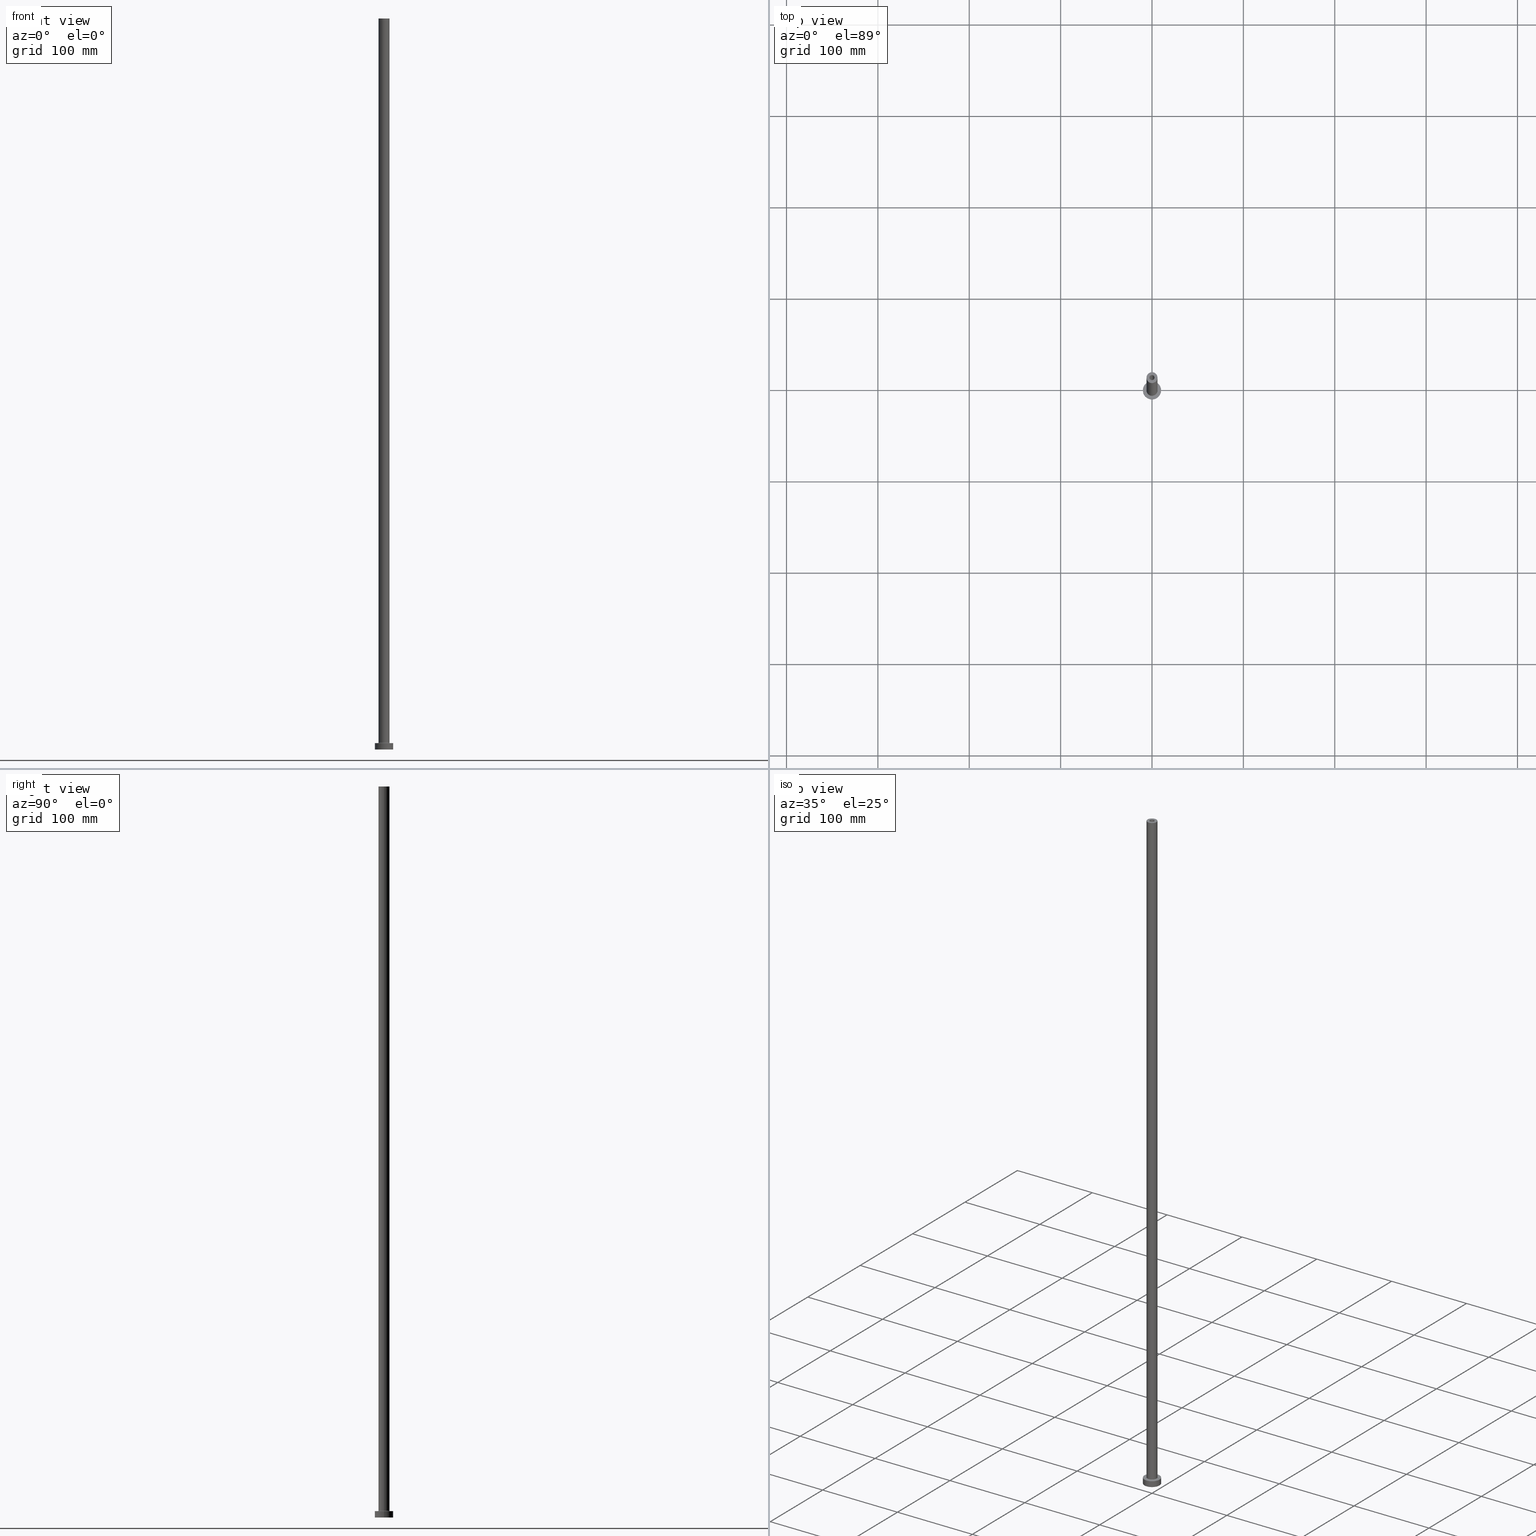
[diagram: canonical four-view strip — front | top / right | iso, engineering-drawing reading convention]
A machine part, canonical four-view strip (front | top / right | iso — engineering-drawing reading convention). The complete STEP part file that produces these views, byte-faithful:
ISO-10303-21;
HEADER;
FILE_DESCRIPTION (( 'STEP AP203' ),
    '1' );
FILE_NAME ('8cc1.STEP',
    '2023-02-13T15:52:03',
    ( '' ),
    ( '' ),
    'SwSTEP 2.0',
    'SolidWorks 2019',
    '' );
FILE_SCHEMA (( 'CONFIG_CONTROL_DESIGN' ));
ENDSEC;

DATA;
#1 = ORIENTED_EDGE ( 'NONE', *, *, #50, .T. ) ;
#2 = CYLINDRICAL_SURFACE ( 'NONE', #186, 6.000000000000000888 ) ;
#3 = FACE_BOUND ( 'NONE', #264, .T. ) ;
#4 = ORIENTED_EDGE ( 'NONE', *, *, #305, .T. ) ;
#5 = DIRECTION ( 'NONE',  ( 1.000000000000000000, 0.000000000000000000, 0.000000000000000000 ) ) ;
#6 = DIRECTION ( 'NONE',  ( -0.000000000000000000, -0.000000000000000000, -1.000000000000000000 ) ) ;
#7 = CIRCLE ( 'NONE', #147, 10.00000000000000000 ) ;
#8 = FACE_OUTER_BOUND ( 'NONE', #241, .T. ) ;
#9 = EDGE_CURVE ( 'NONE', #111, #339, #56, .T. ) ;
#10 = TOROIDAL_SURFACE ( 'NONE', #285, 6.500000000000000888, 0.5000000000000000000 ) ;
#11 = CC_DESIGN_DATE_AND_TIME_ASSIGNMENT ( #80, #85, ( #369 ) ) ;
#12 = LINE ( 'NONE', #258, #292 ) ;
#13 = DIRECTION ( 'NONE',  ( 0.000000000000000000, 0.000000000000000000, 1.000000000000000000 ) ) ;
#14 = FACE_OUTER_BOUND ( 'NONE', #208, .T. ) ;
#15 = FACE_OUTER_BOUND ( 'NONE', #273, .T. ) ;
#16 = CYLINDRICAL_SURFACE ( 'NONE', #65, 10.00000000000000000 ) ;
#17 = CC_DESIGN_PERSON_AND_ORGANIZATION_ASSIGNMENT ( #232, #438, ( #369 ) ) ;
#18 = DIRECTION ( 'NONE',  ( 1.000000000000000000, 0.000000000000000000, -0.000000000000000000 ) ) ;
#19 = ORGANIZATION ( 'NEUR�EN�', 'NEUR�EN�', '' ) ;
#20 = CARTESIAN_POINT ( 'NONE',  ( 0.000000000000000000, 0.000000000000000000, 7.000000000000000000 ) ) ;
#21 = AXIS2_PLACEMENT_3D ( 'NONE', #415, #101, #358 ) ;
#22 = EDGE_LOOP ( 'NONE', ( #414, #383, #408, #239 ) ) ;
#23 =( NAMED_UNIT ( * ) SI_UNIT ( $, .STERADIAN. ) SOLID_ANGLE_UNIT ( ) );
#24 = DIRECTION ( 'NONE',  ( -1.000000000000000000, 0.000000000000000000, 0.000000000000000000 ) ) ;
#25 = CARTESIAN_POINT ( 'NONE',  ( 0.000000000000000000, 0.000000000000000000, 7.000000000000000000 ) ) ;
#26 = ORIENTED_EDGE ( 'NONE', *, *, #215, .F. ) ;
#27 = DIRECTION ( 'NONE',  ( -0.000000000000000000, -0.000000000000000000, -1.000000000000000000 ) ) ;
#28 = AXIS2_PLACEMENT_3D ( 'NONE', #435, #145, #18 ) ;
#29 = CARTESIAN_POINT ( 'NONE',  ( 2.899999999999999911, 3.551475717527323832E-16, 0.000000000000000000 ) ) ;
#30 = CARTESIAN_POINT ( 'NONE',  ( 0.000000000000000000, 0.000000000000000000, 800.0000000000000000 ) ) ;
#31 = AXIS2_PLACEMENT_3D ( 'NONE', #79, #302, #230 ) ;
#32 = DIRECTION ( 'NONE',  ( -0.000000000000000000, -0.000000000000000000, -1.000000000000000000 ) ) ;
#33 = PRODUCT_DEFINITION ( 'NEZN�M�', '', #202, #412 ) ;
#34 = LOCAL_TIME ( 16, 52, 3.000000000000000000, #125 ) ;
#35 = ORIENTED_EDGE ( 'NONE', *, *, #278, .T. ) ;
#36 = ORIENTED_EDGE ( 'NONE', *, *, #437, .T. ) ;
#37 = LINE ( 'NONE', #180, #325 ) ;
#38 = COORDINATED_UNIVERSAL_TIME_OFFSET ( 1, 0, .AHEAD. ) ;
#39 = ORIENTED_EDGE ( 'NONE', *, *, #9, .T. ) ;
#40 = CARTESIAN_POINT ( 'NONE',  ( 0.000000000000000000, 0.000000000000000000, 800.0000000000000000 ) ) ;
#41 = DIRECTION ( 'NONE',  ( 1.000000000000000000, 0.000000000000000000, 0.000000000000000000 ) ) ;
#42 = VERTEX_POINT ( 'NONE', #411 ) ;
#43 = AXIS2_PLACEMENT_3D ( 'NONE', #250, #218, #41 ) ;
#44 = CC_DESIGN_APPROVAL ( #386, ( #369 ) ) ;
#45 = VERTEX_POINT ( 'NONE', #144 ) ;
#46 = CARTESIAN_POINT ( 'NONE',  ( 0.000000000000000000, 0.000000000000000000, 0.000000000000000000 ) ) ;
#47 = CARTESIAN_POINT ( 'NONE',  ( 0.000000000000000000, 0.000000000000000000, 755.0000000000000000 ) ) ;
#48 = CARTESIAN_POINT ( 'NONE',  ( -2.750000000000000000, 0.000000000000000000, 800.0000000000000000 ) ) ;
#49 = EDGE_CURVE ( 'NONE', #360, #118, #289, .T. ) ;
#50 = EDGE_CURVE ( 'NONE', #118, #294, #94, .T. ) ;
#51 = DIRECTION ( 'NONE',  ( 0.000000000000000000, 0.000000000000000000, -1.000000000000000000 ) ) ;
#52 = AXIS2_PLACEMENT_3D ( 'NONE', #308, #58, #83 ) ;
#53 = DIRECTION ( 'NONE',  ( 0.000000000000000000, 0.000000000000000000, 1.000000000000000000 ) ) ;
#54 = DIRECTION ( 'NONE',  ( 1.000000000000000000, 0.000000000000000000, 0.000000000000000000 ) ) ;
#55 = CIRCLE ( 'NONE', #392, 6.000000000000000888 ) ;
#56 = LINE ( 'NONE', #188, #436 ) ;
#57 = VERTEX_POINT ( 'NONE', #48 ) ;
#58 = DIRECTION ( 'NONE',  ( 0.000000000000000000, -1.000000000000000000, 0.000000000000000000 ) ) ;
#59 = ADVANCED_FACE ( 'NONE', ( #146 ), #434, .F. ) ;
#60 = DIRECTION ( 'NONE',  ( 0.000000000000000000, 0.000000000000000000, 1.000000000000000000 ) ) ;
#61 = CIRCLE ( 'NONE', #88, 0.5000000000000004441 ) ;
#62 = CARTESIAN_POINT ( 'NONE',  ( -2.899999999999999911, 0.000000000000000000, 0.000000000000000000 ) ) ;
#63 = FACE_OUTER_BOUND ( 'NONE', #419, .T. ) ;
#64 = AXIS2_PLACEMENT_3D ( 'NONE', #348, #60, #159 ) ;
#65 = AXIS2_PLACEMENT_3D ( 'NONE', #298, #115, #204 ) ;
#66 = EDGE_LOOP ( 'NONE', ( #36, #39, #185, #388 ) ) ;
#67 = CARTESIAN_POINT ( 'NONE',  ( -2.750000000000000000, 0.000000000000000000, 755.0000000000000000 ) ) ;
#68 = CIRCLE ( 'NONE', #353, 6.500000000000000888 ) ;
#69 = PLANE ( 'NONE',  #409 ) ;
#70 = ORIENTED_EDGE ( 'NONE', *, *, #142, .F. ) ;
#71 = ORIENTED_EDGE ( 'NONE', *, *, #142, .T. ) ;
#72 = APPROVAL_PERSON_ORGANIZATION ( #420, #249, #315 ) ;
#73 = DIRECTION ( 'NONE',  ( 0.000000000000000000, 0.000000000000000000, 1.000000000000000000 ) ) ;
#74 = APPROVAL_ROLE ( '' ) ;
#75 = EDGE_CURVE ( 'NONE', #431, #446, #68, .T. ) ;
#76 = EDGE_LOOP ( 'NONE', ( #123, #71, #131, #156 ) ) ;
#77 = EDGE_CURVE ( 'NONE', #45, #458, #450, .T. ) ;
#78 = DIRECTION ( 'NONE',  ( 0.000000000000000000, 0.000000000000000000, -1.000000000000000000 ) ) ;
#79 = CARTESIAN_POINT ( 'NONE',  ( 0.000000000000000000, 0.000000000000000000, 800.0000000000000000 ) ) ;
#80 = DATE_AND_TIME ( #401, #319 ) ;
#81 =( LENGTH_UNIT ( ) NAMED_UNIT ( * ) SI_UNIT ( .MILLI., .METRE. ) );
#82 = APPLICATION_CONTEXT ( 'configuration controlled 3d designs of mechanical parts and assemblies' ) ;
#83 = DIRECTION ( 'NONE',  ( 0.000000000000000000, 0.000000000000000000, -1.000000000000000000 ) ) ;
#84 = DATE_AND_TIME ( #443, #34 ) ;
#85 = DATE_TIME_ROLE ( 'classification_date' ) ;
#86 = DIRECTION ( 'NONE',  ( -1.000000000000000000, 0.000000000000000000, 0.000000000000000000 ) ) ;
#87 = ORIENTED_EDGE ( 'NONE', *, *, #215, .T. ) ;
#88 = AXIS2_PLACEMENT_3D ( 'NONE', #299, #445, #380 ) ;
#89 = DIRECTION ( 'NONE',  ( 1.000000000000000000, 0.000000000000000000, 0.000000000000000000 ) ) ;
#90 = ORIENTED_EDGE ( 'NONE', *, *, #261, .F. ) ;
#91 = EDGE_CURVE ( 'NONE', #111, #57, #133, .T. ) ;
#92 = CC_DESIGN_PERSON_AND_ORGANIZATION_ASSIGNMENT ( #109, #248, ( #202 ) ) ;
#93 = ORIENTED_EDGE ( 'NONE', *, *, #91, .F. ) ;
#94 = CIRCLE ( 'NONE', #151, 2.899999999999999911 ) ;
#95 = PRODUCT_DEFINITION_SHAPE ( 'NONE', 'NONE',  #33 ) ;
#96 = UNCERTAINTY_MEASURE_WITH_UNIT (LENGTH_MEASURE( 1.000000000000000082E-05 ), #81, 'distance_accuracy_value', 'NONE');
#97 = CARTESIAN_POINT ( 'NONE',  ( 2.750000000000000000, 3.367778697655221012E-16, 800.0000000000000000 ) ) ;
#98 = EDGE_CURVE ( 'NONE', #446, #431, #314, .T. ) ;
#99 = CIRCLE ( 'NONE', #211, 6.000000000000000888 ) ;
#100 = VECTOR ( 'NONE', #323, 1000.000000000000000 ) ;
#101 = DIRECTION ( 'NONE',  ( 0.000000000000000000, 0.000000000000000000, -1.000000000000000000 ) ) ;
#102 = EDGE_LOOP ( 'NONE', ( #322, #425, #457, #1 ) ) ;
#103 = TOROIDAL_SURFACE ( 'NONE', #237, 6.500000000000000888, 0.5000000000000000000 ) ;
#104 = ORIENTED_EDGE ( 'NONE', *, *, #9, .F. ) ;
#105 = DATE_AND_TIME ( #391, #423 ) ;
#106 = AXIS2_PLACEMENT_3D ( 'NONE', #336, #266, #54 ) ;
#107 = EDGE_LOOP ( 'NONE', ( #224, #136, #139, #301 ) ) ;
#108 = EDGE_CURVE ( 'NONE', #339, #377, #328, .T. ) ;
#109 = PERSON_AND_ORGANIZATION ( #222, #19 ) ;
#110 = ADVANCED_FACE ( 'NONE', ( #413 ), #350, .T. ) ;
#111 = VERTEX_POINT ( 'NONE', #97 ) ;
#112 = CIRCLE ( 'NONE', #195, 2.899999999999999911 ) ;
#113 = ORIENTED_EDGE ( 'NONE', *, *, #305, .F. ) ;
#114 = COORDINATED_UNIVERSAL_TIME_OFFSET ( 1, 0, .AHEAD. ) ;
#115 = DIRECTION ( 'NONE',  ( -0.000000000000000000, -0.000000000000000000, -1.000000000000000000 ) ) ;
#116 = DIRECTION ( 'NONE',  ( 0.000000000000000000, 0.000000000000000000, 1.000000000000000000 ) ) ;
#117 = CARTESIAN_POINT ( 'NONE',  ( 0.000000000000000000, 0.000000000000000000, 800.0000000000000000 ) ) ;
#118 = VERTEX_POINT ( 'NONE', #62 ) ;
#119 = CARTESIAN_POINT ( 'NONE',  ( 0.000000000000000000, 0.000000000000000000, 7.499999999999951150 ) ) ;
#120 = ADVANCED_FACE ( 'NONE', ( #453 ), #2, .T. ) ;
#121 = FACE_OUTER_BOUND ( 'NONE', #102, .T. ) ;
#122 =( GEOMETRIC_REPRESENTATION_CONTEXT ( 3 ) GLOBAL_UNCERTAINTY_ASSIGNED_CONTEXT ( ( #96 ) ) GLOBAL_UNIT_ASSIGNED_CONTEXT ( ( #81, #240, #23 ) ) REPRESENTATION_CONTEXT ( 'NONE', 'WORKASPACE' ) );
#123 = ORIENTED_EDGE ( 'NONE', *, *, #228, .F. ) ;
#124 = DIRECTION ( 'NONE',  ( 0.000000000000000000, 0.000000000000000000, 1.000000000000000000 ) ) ;
#125 = COORDINATED_UNIVERSAL_TIME_OFFSET ( 1, 0, .AHEAD. ) ;
#126 = FACE_BOUND ( 'NONE', #320, .T. ) ;
#127 = LOCAL_TIME ( 16, 52, 3.000000000000000000, #38 ) ;
#128 = AXIS2_PLACEMENT_3D ( 'NONE', #332, #295, #296 ) ;
#129 = ORIENTED_EDGE ( 'NONE', *, *, #261, .T. ) ;
#130 = DATE_AND_TIME ( #355, #127 ) ;
#131 = ORIENTED_EDGE ( 'NONE', *, *, #246, .T. ) ;
#132 = APPROVAL_DATE_TIME ( #105, #386 ) ;
#133 = CIRCLE ( 'NONE', #31, 2.750000000000000000 ) ;
#134 = CARTESIAN_POINT ( 'NONE',  ( -10.00000000000000000, 0.000000000000000000, 7.000000000000000000 ) ) ;
#135 = EDGE_CURVE ( 'NONE', #57, #377, #37, .T. ) ;
#136 = ORIENTED_EDGE ( 'NONE', *, *, #291, .T. ) ;
#137 = DIRECTION ( 'NONE',  ( 0.000000000000000000, 0.000000000000000000, 1.000000000000000000 ) ) ;
#138 = CIRCLE ( 'NONE', #166, 2.899999999999999911 ) ;
#139 = ORIENTED_EDGE ( 'NONE', *, *, #329, .T. ) ;
#140 = CARTESIAN_POINT ( 'NONE',  ( 0.000000000000000000, 0.000000000000000000, 0.000000000000000000 ) ) ;
#141 = EDGE_LOOP ( 'NONE', ( #162, #93 ) ) ;
#142 = EDGE_CURVE ( 'NONE', #395, #390, #176, .T. ) ;
#143 = CARTESIAN_POINT ( 'NONE',  ( 0.000000000000000000, 0.000000000000000000, 7.499999999999951150 ) ) ;
#144 = CARTESIAN_POINT ( 'NONE',  ( 10.00000000000000000, 1.224646799147353256E-15, 7.000000000000000000 ) ) ;
#145 = DIRECTION ( 'NONE',  ( 0.000000000000000000, 0.000000000000000000, 1.000000000000000000 ) ) ;
#146 = FACE_OUTER_BOUND ( 'NONE', #22, .T. ) ;
#147 = AXIS2_PLACEMENT_3D ( 'NONE', #247, #137, #456 ) ;
#148 = CARTESIAN_POINT ( 'NONE',  ( -2.899999999999999911, 0.000000000000000000, 755.0000000000000000 ) ) ;
#149 = DIRECTION ( 'NONE',  ( -0.000000000000000000, -0.000000000000000000, -1.000000000000000000 ) ) ;
#150 = FACE_BOUND ( 'NONE', #141, .T. ) ;
#151 = AXIS2_PLACEMENT_3D ( 'NONE', #226, #367, #5 ) ;
#152 = DIRECTION ( 'NONE',  ( 1.000000000000000000, 0.000000000000000000, 0.000000000000000000 ) ) ;
#153 = DIRECTION ( 'NONE',  ( -0.000000000000000000, -0.000000000000000000, -1.000000000000000000 ) ) ;
#154 = CARTESIAN_POINT ( 'NONE',  ( -6.500000000000000888, 7.960204194457796463E-16, 6.999999999999975131 ) ) ;
#155 = VECTOR ( 'NONE', #149, 1000.000000000000000 ) ;
#156 = ORIENTED_EDGE ( 'NONE', *, *, #203, .F. ) ;
#157 = CYLINDRICAL_SURFACE ( 'NONE', #216, 10.00000000000000000 ) ;
#158 = ADVANCED_FACE ( 'NONE', ( #459 ), #280, .F. ) ;
#159 = DIRECTION ( 'NONE',  ( 1.000000000000000000, 0.000000000000000000, 0.000000000000000000 ) ) ;
#160 = LINE ( 'NONE', #238, #439 ) ;
#161 = CC_DESIGN_PERSON_AND_ORGANIZATION_ASSIGNMENT ( #372, #375, ( #33 ) ) ;
#162 = ORIENTED_EDGE ( 'NONE', *, *, #437, .F. ) ;
#163 = DIRECTION ( 'NONE',  ( 0.000000000000000000, 0.000000000000000000, -1.000000000000000000 ) ) ;
#164 = PERSON_AND_ORGANIZATION ( #222, #19 ) ;
#165 = FACE_OUTER_BOUND ( 'NONE', #253, .T. ) ;
#166 = AXIS2_PLACEMENT_3D ( 'NONE', #46, #6, #189 ) ;
#167 = PRODUCT ( '8cc1', '8cc1', '', ( #234 ) ) ;
#168 = CARTESIAN_POINT ( 'NONE',  ( 0.000000000000000000, 0.000000000000000000, 7.499999999999951150 ) ) ;
#169 = DIRECTION ( 'NONE',  ( -0.000000000000000000, -0.000000000000000000, -1.000000000000000000 ) ) ;
#170 = PERSON_AND_ORGANIZATION ( #222, #19 ) ;
#171 = APPROVAL_STATUS ( 'not_yet_approved' ) ;
#172 = CALENDAR_DATE ( 2023, 13, 2 ) ;
#173 = CARTESIAN_POINT ( 'NONE',  ( 6.000000000000000888, 7.347880794884120722E-16, 800.0000000000000000 ) ) ;
#174 = AXIS2_PLACEMENT_3D ( 'NONE', #382, #13, #335 ) ;
#175 = ORIENTED_EDGE ( 'NONE', *, *, #98, .T. ) ;
#176 = LINE ( 'NONE', #173, #100 ) ;
#177 = CC_DESIGN_DATE_AND_TIME_ASSIGNMENT ( #130, #281, ( #33 ) ) ;
#178 = DIRECTION ( 'NONE',  ( 0.000000000000000000, 0.000000000000000000, 1.000000000000000000 ) ) ;
#179 = EDGE_CURVE ( 'NONE', #458, #331, #422, .T. ) ;
#180 = CARTESIAN_POINT ( 'NONE',  ( -2.750000000000000000, 0.000000000000000000, 800.0000000000000000 ) ) ;
#181 = ORIENTED_EDGE ( 'NONE', *, *, #50, .F. ) ;
#182 = DIRECTION ( 'NONE',  ( 0.000000000000000000, 0.000000000000000000, -1.000000000000000000 ) ) ;
#183 = AXIS2_PLACEMENT_3D ( 'NONE', #259, #263, #86 ) ;
#184 = CC_DESIGN_PERSON_AND_ORGANIZATION_ASSIGNMENT ( #394, #225, ( #202 ) ) ;
#185 = ORIENTED_EDGE ( 'NONE', *, *, #361, .F. ) ;
#186 = AXIS2_PLACEMENT_3D ( 'NONE', #40, #32, #277 ) ;
#187 = DIRECTION ( 'NONE',  ( 0.000000000000000000, 0.000000000000000000, 1.000000000000000000 ) ) ;
#188 = CARTESIAN_POINT ( 'NONE',  ( 2.750000000000000000, 3.367778697655221012E-16, 800.0000000000000000 ) ) ;
#189 = DIRECTION ( 'NONE',  ( 1.000000000000000000, 0.000000000000000000, 0.000000000000000000 ) ) ;
#190 = ORIENTED_EDGE ( 'NONE', *, *, #351, .F. ) ;
#191 = CARTESIAN_POINT ( 'NONE',  ( -10.00000000000000000, 0.000000000000000000, 7.000000000000000000 ) ) ;
#192 = CARTESIAN_POINT ( 'NONE',  ( 0.000000000000000000, 0.000000000000000000, 755.0000000000000000 ) ) ;
#193 = CARTESIAN_POINT ( 'NONE',  ( 0.000000000000000000, 0.000000000000000000, 755.0000000000000000 ) ) ;
#194 = EDGE_LOOP ( 'NONE', ( #268, #421 ) ) ;
#195 = AXIS2_PLACEMENT_3D ( 'NONE', #47, #430, #220 ) ;
#196 = FACE_OUTER_BOUND ( 'NONE', #318, .T. ) ;
#197 = DIRECTION ( 'NONE',  ( -0.000000000000000000, -0.000000000000000000, -1.000000000000000000 ) ) ;
#198 = VECTOR ( 'NONE', #51, 1000.000000000000000 ) ;
#199 = APPLICATION_PROTOCOL_DEFINITION ( 'international standard', 'config_control_design', 1994, #269 ) ;
#200 = CARTESIAN_POINT ( 'NONE',  ( 0.000000000000000000, 0.000000000000000000, 7.000000000000000000 ) ) ;
#201 = EDGE_CURVE ( 'NONE', #360, #342, #341, .T. ) ;
#202 = PRODUCT_DEFINITION_FORMATION_WITH_SPECIFIED_SOURCE ( 'LIBOVOLN�', '', #167, .NOT_KNOWN. ) ;
#203 = EDGE_CURVE ( 'NONE', #402, #213, #12, .T. ) ;
#204 = DIRECTION ( 'NONE',  ( -1.000000000000000000, 0.000000000000000000, 0.000000000000000000 ) ) ;
#205 = ORIENTED_EDGE ( 'NONE', *, *, #98, .F. ) ;
#206 = CARTESIAN_POINT ( 'NONE',  ( 0.000000000000000000, 0.000000000000000000, 800.0000000000000000 ) ) ;
#207 = DIRECTION ( 'NONE',  ( 0.000000000000000000, 0.000000000000000000, -1.000000000000000000 ) ) ;
#208 = EDGE_LOOP ( 'NONE', ( #444, #357 ) ) ;
#209 = LINE ( 'NONE', #347, #324 ) ;
#210 = DIRECTION ( 'NONE',  ( 1.000000000000000000, 0.000000000000000000, 0.000000000000000000 ) ) ;
#211 = AXIS2_PLACEMENT_3D ( 'NONE', #119, #124, #265 ) ;
#212 = PLANE ( 'NONE',  #223 ) ;
#213 = VERTEX_POINT ( 'NONE', #398 ) ;
#214 = ADVANCED_FACE ( 'NONE', ( #15 ), #157, .T. ) ;
#215 = EDGE_CURVE ( 'NONE', #213, #431, #61, .T. ) ;
#216 = AXIS2_PLACEMENT_3D ( 'NONE', #343, #153, #24 ) ;
#217 = CIRCLE ( 'NONE', #43, 6.000000000000000888 ) ;
#218 = DIRECTION ( 'NONE',  ( 0.000000000000000000, 0.000000000000000000, 1.000000000000000000 ) ) ;
#219 = ORIENTED_EDGE ( 'NONE', *, *, #91, .T. ) ;
#220 = DIRECTION ( 'NONE',  ( 1.000000000000000000, 0.000000000000000000, 0.000000000000000000 ) ) ;
#221 = ORIENTED_EDGE ( 'NONE', *, *, #179, .T. ) ;
#222 = PERSON ( 'NEUR�EN�', 'NEUR�EN�', 'NEUR�EN�', ('NEUR�EN�'), ('NEUR�EN�'), ('NEUR�EN�') ) ;
#223 = AXIS2_PLACEMENT_3D ( 'NONE', #354, #417, #317 ) ;
#224 = ORIENTED_EDGE ( 'NONE', *, *, #77, .F. ) ;
#225 = PERSON_AND_ORGANIZATION_ROLE ( 'design_supplier' ) ;
#226 = CARTESIAN_POINT ( 'NONE',  ( 0.000000000000000000, 0.000000000000000000, 0.000000000000000000 ) ) ;
#227 = ORIENTED_EDGE ( 'NONE', *, *, #135, .T. ) ;
#228 = EDGE_CURVE ( 'NONE', #395, #402, #55, .T. ) ;
#229 = CIRCLE ( 'NONE', #52, 0.5000000000000004441 ) ;
#230 = DIRECTION ( 'NONE',  ( 1.000000000000000000, 0.000000000000000000, 0.000000000000000000 ) ) ;
#231 = PLANE ( 'NONE',  #271 ) ;
#232 = PERSON_AND_ORGANIZATION ( #222, #19 ) ;
#233 = ADVANCED_FACE ( 'NONE', ( #121 ), #262, .F. ) ;
#234 = MECHANICAL_CONTEXT ( 'NONE', #269, 'mechanical' ) ;
#235 = DIRECTION ( 'NONE',  ( -1.000000000000000000, 0.000000000000000000, 0.000000000000000000 ) ) ;
#236 = ORIENTED_EDGE ( 'NONE', *, *, #361, .T. ) ;
#237 = AXIS2_PLACEMENT_3D ( 'NONE', #168, #460, #352 ) ;
#238 = CARTESIAN_POINT ( 'NONE',  ( 2.899999999999999911, 3.551475717527323832E-16, 763.2024386617638356 ) ) ;
#239 = ORIENTED_EDGE ( 'NONE', *, *, #49, .F. ) ;
#240 =( NAMED_UNIT ( * ) PLANE_ANGLE_UNIT ( ) SI_UNIT ( $, .RADIAN. ) );
#241 = EDGE_LOOP ( 'NONE', ( #113, #327 ) ) ;
#242 = APPROVAL_STATUS ( 'not_yet_approved' ) ;
#243 = DIRECTION ( 'NONE',  ( 0.000000000000000000, 0.000000000000000000, -1.000000000000000000 ) ) ;
#244 = MANIFOLD_SOLID_BREP ( 'Odebrat vysunut�m4', #396 ) ;
#245 = CIRCLE ( 'NONE', #447, 10.00000000000000000 ) ;
#246 = EDGE_CURVE ( 'NONE', #390, #213, #399, .T. ) ;
#247 = CARTESIAN_POINT ( 'NONE',  ( 0.000000000000000000, 0.000000000000000000, 0.000000000000000000 ) ) ;
#248 = PERSON_AND_ORGANIZATION_ROLE ( 'creator' ) ;
#249 = APPROVAL ( #242, 'NEUR�EN�' ) ;
#250 = CARTESIAN_POINT ( 'NONE',  ( 0.000000000000000000, 0.000000000000000000, 800.0000000000000000 ) ) ;
#251 = EDGE_LOOP ( 'NONE', ( #181, #190 ) ) ;
#252 = DIRECTION ( 'NONE',  ( 0.000000000000000000, 0.000000000000000000, 1.000000000000000000 ) ) ;
#253 = EDGE_LOOP ( 'NONE', ( #26, #304, #129, #461 ) ) ;
#254 = CC_DESIGN_APPROVAL ( #345, ( #202 ) ) ;
#255 = CARTESIAN_POINT ( 'NONE',  ( -2.899999999999999911, 0.000000000000000000, 763.2024386617638356 ) ) ;
#256 = CARTESIAN_POINT ( 'NONE',  ( 0.000000000000000000, 0.000000000000000000, 763.2024386617638356 ) ) ;
#257 = AXIS2_PLACEMENT_3D ( 'NONE', #193, #333, #274 ) ;
#258 = CARTESIAN_POINT ( 'NONE',  ( -6.000000000000000888, 0.000000000000000000, 800.0000000000000000 ) ) ;
#259 = CARTESIAN_POINT ( 'NONE',  ( 0.000000000000000000, 0.000000000000000000, 800.0000000000000000 ) ) ;
#260 = AXIS2_PLACEMENT_3D ( 'NONE', #117, #407, #89 ) ;
#261 = EDGE_CURVE ( 'NONE', #390, #446, #229, .T. ) ;
#262 = CYLINDRICAL_SURFACE ( 'NONE', #432, 2.899999999999999911 ) ;
#263 = DIRECTION ( 'NONE',  ( 0.000000000000000000, 0.000000000000000000, -1.000000000000000000 ) ) ;
#264 = EDGE_LOOP ( 'NONE', ( #175, #364 ) ) ;
#265 = DIRECTION ( 'NONE',  ( 1.000000000000000000, 0.000000000000000000, 0.000000000000000000 ) ) ;
#266 = DIRECTION ( 'NONE',  ( -0.000000000000000000, -0.000000000000000000, -1.000000000000000000 ) ) ;
#267 = FACE_OUTER_BOUND ( 'NONE', #107, .T. ) ;
#268 = ORIENTED_EDGE ( 'NONE', *, *, #384, .T. ) ;
#269 = APPLICATION_CONTEXT ( 'configuration controlled 3d designs of mechanical parts and assemblies' ) ;
#270 = CARTESIAN_POINT ( 'NONE',  ( 0.000000000000000000, 0.000000000000000000, 7.499999999999951150 ) ) ;
#271 = AXIS2_PLACEMENT_3D ( 'NONE', #200, #53, #338 ) ;
#272 = AXIS2_PLACEMENT_3D ( 'NONE', #192, #187, #284 ) ;
#273 = EDGE_LOOP ( 'NONE', ( #397, #303, #221, #4 ) ) ;
#274 = DIRECTION ( 'NONE',  ( 1.000000000000000000, 0.000000000000000000, 0.000000000000000000 ) ) ;
#275 = DIRECTION ( 'NONE',  ( 1.000000000000000000, 0.000000000000000000, 0.000000000000000000 ) ) ;
#276 = APPROVAL_DATE_TIME ( #452, #345 ) ;
#277 = DIRECTION ( 'NONE',  ( -1.000000000000000000, 0.000000000000000000, 0.000000000000000000 ) ) ;
#278 = EDGE_CURVE ( 'NONE', #213, #390, #99, .T. ) ;
#279 = ORIENTED_EDGE ( 'NONE', *, *, #108, .F. ) ;
#280 = CYLINDRICAL_SURFACE ( 'NONE', #21, 2.750000000000000000 ) ;
#281 = DATE_TIME_ROLE ( 'creation_date' ) ;
#282 = ORIENTED_EDGE ( 'NONE', *, *, #203, .T. ) ;
#283 = ORIENTED_EDGE ( 'NONE', *, *, #278, .F. ) ;
#284 = DIRECTION ( 'NONE',  ( 1.000000000000000000, 0.000000000000000000, 0.000000000000000000 ) ) ;
#285 = AXIS2_PLACEMENT_3D ( 'NONE', #143, #252, #363 ) ;
#286 = ORIENTED_EDGE ( 'NONE', *, *, #384, .F. ) ;
#287 = EDGE_LOOP ( 'NONE', ( #70, #286, #282, #35 ) ) ;
#288 = APPROVAL_STATUS ( 'not_yet_approved' ) ;
#289 = LINE ( 'NONE', #255, #198 ) ;
#290 = CARTESIAN_POINT ( 'NONE',  ( 2.750000000000000000, 3.367778697655221012E-16, 755.0000000000000000 ) ) ;
#291 = EDGE_CURVE ( 'NONE', #45, #42, #209, .T. ) ;
#292 = VECTOR ( 'NONE', #197, 1000.000000000000000 ) ;
#293 = ADVANCED_FACE ( 'NONE', ( #165 ), #103, .F. ) ;
#294 = VERTEX_POINT ( 'NONE', #29 ) ;
#295 = DIRECTION ( 'NONE',  ( 0.000000000000000000, 0.000000000000000000, 1.000000000000000000 ) ) ;
#296 = DIRECTION ( 'NONE',  ( 1.000000000000000000, 0.000000000000000000, 0.000000000000000000 ) ) ;
#297 = CYLINDRICAL_SURFACE ( 'NONE', #183, 2.750000000000000000 ) ;
#298 = CARTESIAN_POINT ( 'NONE',  ( 0.000000000000000000, 0.000000000000000000, 7.000000000000000000 ) ) ;
#299 = CARTESIAN_POINT ( 'NONE',  ( -6.500000000000000888, 7.960204194457796463E-16, 7.499999999999951150 ) ) ;
#300 = CARTESIAN_POINT ( 'NONE',  ( -10.00000000000000000, 0.000000000000000000, 0.000000000000000000 ) ) ;
#301 = ORIENTED_EDGE ( 'NONE', *, *, #179, .F. ) ;
#302 = DIRECTION ( 'NONE',  ( 0.000000000000000000, 0.000000000000000000, 1.000000000000000000 ) ) ;
#303 = ORIENTED_EDGE ( 'NONE', *, *, #455, .F. ) ;
#304 = ORIENTED_EDGE ( 'NONE', *, *, #246, .F. ) ;
#305 = EDGE_CURVE ( 'NONE', #331, #42, #7, .T. ) ;
#306 = PERSON_AND_ORGANIZATION_ROLE ( 'design_owner' ) ;
#307 = ADVANCED_FACE ( 'NONE', ( #126, #63 ), #212, .F. ) ;
#308 = CARTESIAN_POINT ( 'NONE',  ( 6.500000000000000888, 0.000000000000000000, 7.499999999999951150 ) ) ;
#309 = APPROVAL_PERSON_ORGANIZATION ( #170, #345, #74 ) ;
#310 = CC_DESIGN_SECURITY_CLASSIFICATION ( #369, ( #202 ) ) ;
#311 = SECURITY_CLASSIFICATION_LEVEL ( 'unclassified' ) ;
#312 = DIRECTION ( 'NONE',  ( -1.000000000000000000, 0.000000000000000000, 0.000000000000000000 ) ) ;
#313 = APPROVAL_ROLE ( '' ) ;
#314 = CIRCLE ( 'NONE', #106, 6.500000000000000888 ) ;
#315 = APPROVAL_ROLE ( '' ) ;
#316 = COORDINATED_UNIVERSAL_TIME_OFFSET ( 1, 0, .AHEAD. ) ;
#317 = DIRECTION ( 'NONE',  ( 1.000000000000000000, 0.000000000000000000, -0.000000000000000000 ) ) ;
#318 = EDGE_LOOP ( 'NONE', ( #104, #219, #227, #279 ) ) ;
#319 = LOCAL_TIME ( 16, 52, 3.000000000000000000, #114 ) ;
#320 = EDGE_LOOP ( 'NONE', ( #236, #441 ) ) ;
#321 = SHAPE_DEFINITION_REPRESENTATION ( #95, #356 ) ;
#322 = ORIENTED_EDGE ( 'NONE', *, *, #440, .F. ) ;
#323 = DIRECTION ( 'NONE',  ( -0.000000000000000000, -0.000000000000000000, -1.000000000000000000 ) ) ;
#324 = VECTOR ( 'NONE', #27, 1000.000000000000000 ) ;
#325 = VECTOR ( 'NONE', #182, 1000.000000000000000 ) ;
#326 = CARTESIAN_POINT ( 'NONE',  ( 6.000000000000000888, 7.347880794884120722E-16, 800.0000000000000000 ) ) ;
#327 = ORIENTED_EDGE ( 'NONE', *, *, #329, .F. ) ;
#328 = CIRCLE ( 'NONE', #257, 2.750000000000000000 ) ;
#329 = EDGE_CURVE ( 'NONE', #42, #331, #340, .T. ) ;
#330 = ADVANCED_FACE ( 'NONE', ( #150, #371 ), #337, .T. ) ;
#331 = VERTEX_POINT ( 'NONE', #300 ) ;
#332 = CARTESIAN_POINT ( 'NONE',  ( 0.000000000000000000, 0.000000000000000000, 755.0000000000000000 ) ) ;
#333 = DIRECTION ( 'NONE',  ( 0.000000000000000000, 0.000000000000000000, 1.000000000000000000 ) ) ;
#334 = CIRCLE ( 'NONE', #260, 2.750000000000000000 ) ;
#335 = DIRECTION ( 'NONE',  ( 1.000000000000000000, 0.000000000000000000, 0.000000000000000000 ) ) ;
#336 = CARTESIAN_POINT ( 'NONE',  ( 0.000000000000000000, 0.000000000000000000, 7.000000000000000000 ) ) ;
#337 = PLANE ( 'NONE',  #28 ) ;
#338 = DIRECTION ( 'NONE',  ( 1.000000000000000000, 0.000000000000000000, -0.000000000000000000 ) ) ;
#339 = VERTEX_POINT ( 'NONE', #290 ) ;
#340 = CIRCLE ( 'NONE', #174, 10.00000000000000000 ) ;
#341 = CIRCLE ( 'NONE', #128, 2.899999999999999911 ) ;
#342 = VERTEX_POINT ( 'NONE', #365 ) ;
#343 = CARTESIAN_POINT ( 'NONE',  ( 0.000000000000000000, 0.000000000000000000, 7.000000000000000000 ) ) ;
#344 = CARTESIAN_POINT ( 'NONE',  ( 6.500000000000000888, 0.000000000000000000, 6.999999999999975131 ) ) ;
#345 = APPROVAL ( #288, 'NEUR�EN�' ) ;
#346 = ORIENTED_EDGE ( 'NONE', *, *, #403, .F. ) ;
#347 = CARTESIAN_POINT ( 'NONE',  ( 10.00000000000000000, 1.224646799147353256E-15, 7.000000000000000000 ) ) ;
#348 = CARTESIAN_POINT ( 'NONE',  ( 0.000000000000000000, 0.000000000000000000, 7.000000000000000000 ) ) ;
#349 = AXIS2_PLACEMENT_3D ( 'NONE', #270, #442, #405 ) ;
#350 = CYLINDRICAL_SURFACE ( 'NONE', #428, 6.000000000000000888 ) ;
#351 = EDGE_CURVE ( 'NONE', #294, #118, #138, .T. ) ;
#352 = DIRECTION ( 'NONE',  ( 1.000000000000000000, 0.000000000000000000, 0.000000000000000000 ) ) ;
#353 = AXIS2_PLACEMENT_3D ( 'NONE', #20, #379, #210 ) ;
#354 = CARTESIAN_POINT ( 'NONE',  ( 0.000000000000000000, 0.000000000000000000, 755.0000000000000000 ) ) ;
#355 = CALENDAR_DATE ( 2023, 13, 2 ) ;
#356 = ADVANCED_BREP_SHAPE_REPRESENTATION ( '8cc1', ( #244, #385 ), #122 ) ;
#357 = ORIENTED_EDGE ( 'NONE', *, *, #77, .T. ) ;
#358 = DIRECTION ( 'NONE',  ( -1.000000000000000000, 0.000000000000000000, 0.000000000000000000 ) ) ;
#359 = CC_DESIGN_APPROVAL ( #249, ( #33 ) ) ;
#360 = VERTEX_POINT ( 'NONE', #148 ) ;
#361 = EDGE_CURVE ( 'NONE', #377, #339, #381, .T. ) ;
#362 = CARTESIAN_POINT ( 'NONE',  ( -6.000000000000000888, 0.000000000000000000, 800.0000000000000000 ) ) ;
#363 = DIRECTION ( 'NONE',  ( 1.000000000000000000, 0.000000000000000000, 0.000000000000000000 ) ) ;
#364 = ORIENTED_EDGE ( 'NONE', *, *, #75, .T. ) ;
#365 = CARTESIAN_POINT ( 'NONE',  ( 2.899999999999999911, 3.551475717527323832E-16, 755.0000000000000000 ) ) ;
#366 = CARTESIAN_POINT ( 'NONE',  ( 6.000000000000000888, 7.347880794884120722E-16, 7.499999999999951150 ) ) ;
#367 = DIRECTION ( 'NONE',  ( -0.000000000000000000, -0.000000000000000000, -1.000000000000000000 ) ) ;
#368 = DIRECTION ( 'NONE',  ( -1.000000000000000000, 0.000000000000000000, 0.000000000000000000 ) ) ;
#369 = SECURITY_CLASSIFICATION ( '', '', #311 ) ;
#370 = CARTESIAN_POINT ( 'NONE',  ( 0.000000000000000000, 0.000000000000000000, 0.000000000000000000 ) ) ;
#371 = FACE_OUTER_BOUND ( 'NONE', #194, .T. ) ;
#372 = PERSON_AND_ORGANIZATION ( #222, #19 ) ;
#373 = APPROVAL_PERSON_ORGANIZATION ( #433, #386, #313 ) ;
#374 = CC_DESIGN_PERSON_AND_ORGANIZATION_ASSIGNMENT ( #164, #306, ( #167 ) ) ;
#375 = PERSON_AND_ORGANIZATION_ROLE ( 'creator' ) ;
#376 = ADVANCED_FACE ( 'NONE', ( #393, #8 ), #69, .F. ) ;
#377 = VERTEX_POINT ( 'NONE', #67 ) ;
#378 = DIRECTION ( 'NONE',  ( 0.000000000000000000, 0.000000000000000000, 1.000000000000000000 ) ) ;
#379 = DIRECTION ( 'NONE',  ( -0.000000000000000000, -0.000000000000000000, -1.000000000000000000 ) ) ;
#380 = DIRECTION ( 'NONE',  ( -1.000000000000000000, 1.224646799147351482E-16, 0.000000000000000000 ) ) ;
#381 = CIRCLE ( 'NONE', #272, 2.750000000000000000 ) ;
#382 = CARTESIAN_POINT ( 'NONE',  ( 0.000000000000000000, 0.000000000000000000, 0.000000000000000000 ) ) ;
#383 = ORIENTED_EDGE ( 'NONE', *, *, #440, .T. ) ;
#384 = EDGE_CURVE ( 'NONE', #402, #395, #217, .T. ) ;
#385 = AXIS2_PLACEMENT_3D ( 'NONE', #370, #378, #152 ) ;
#386 = APPROVAL ( #171, 'NEUR�EN�' ) ;
#387 = EDGE_LOOP ( 'NONE', ( #283, #87, #205, #90 ) ) ;
#388 = ORIENTED_EDGE ( 'NONE', *, *, #135, .F. ) ;
#389 = PRODUCT_RELATED_PRODUCT_CATEGORY ( 'detail', '', ( #167 ) ) ;
#390 = VERTEX_POINT ( 'NONE', #366 ) ;
#391 = CALENDAR_DATE ( 2023, 13, 2 ) ;
#392 = AXIS2_PLACEMENT_3D ( 'NONE', #206, #116, #410 ) ;
#393 = FACE_BOUND ( 'NONE', #251, .T. ) ;
#394 = PERSON_AND_ORGANIZATION ( #222, #19 ) ;
#395 = VERTEX_POINT ( 'NONE', #326 ) ;
#396 = CLOSED_SHELL ( 'NONE', ( #158, #59, #404, #120, #426, #214, #416, #376, #110, #330, #293, #233, #307, #418 ) ) ;
#397 = ORIENTED_EDGE ( 'NONE', *, *, #291, .F. ) ;
#398 = CARTESIAN_POINT ( 'NONE',  ( -6.000000000000000888, 0.000000000000000000, 7.499999999999951150 ) ) ;
#399 = CIRCLE ( 'NONE', #349, 6.000000000000000888 ) ;
#400 = CARTESIAN_POINT ( 'NONE',  ( 0.000000000000000000, 0.000000000000000000, 763.2024386617638356 ) ) ;
#401 = CALENDAR_DATE ( 2023, 13, 2 ) ;
#402 = VERTEX_POINT ( 'NONE', #362 ) ;
#403 = EDGE_CURVE ( 'NONE', #342, #360, #112, .T. ) ;
#404 = ADVANCED_FACE ( 'NONE', ( #424 ), #10, .F. ) ;
#405 = DIRECTION ( 'NONE',  ( 1.000000000000000000, 0.000000000000000000, 0.000000000000000000 ) ) ;
#406 = APPROVAL_DATE_TIME ( #84, #249 ) ;
#407 = DIRECTION ( 'NONE',  ( 0.000000000000000000, 0.000000000000000000, 1.000000000000000000 ) ) ;
#408 = ORIENTED_EDGE ( 'NONE', *, *, #351, .T. ) ;
#409 = AXIS2_PLACEMENT_3D ( 'NONE', #140, #73, #427 ) ;
#410 = DIRECTION ( 'NONE',  ( 1.000000000000000000, 0.000000000000000000, 0.000000000000000000 ) ) ;
#411 = CARTESIAN_POINT ( 'NONE',  ( 10.00000000000000000, 1.224646799147353256E-15, 0.000000000000000000 ) ) ;
#412 = DESIGN_CONTEXT ( 'detailed design', #82, 'design' ) ;
#413 = FACE_OUTER_BOUND ( 'NONE', #287, .T. ) ;
#414 = ORIENTED_EDGE ( 'NONE', *, *, #201, .T. ) ;
#415 = CARTESIAN_POINT ( 'NONE',  ( 0.000000000000000000, 0.000000000000000000, 800.0000000000000000 ) ) ;
#416 = ADVANCED_FACE ( 'NONE', ( #3, #14 ), #231, .T. ) ;
#417 = DIRECTION ( 'NONE',  ( 0.000000000000000000, 0.000000000000000000, 1.000000000000000000 ) ) ;
#418 = ADVANCED_FACE ( 'NONE', ( #196 ), #297, .F. ) ;
#419 = EDGE_LOOP ( 'NONE', ( #429, #346 ) ) ;
#420 = PERSON_AND_ORGANIZATION ( #222, #19 ) ;
#421 = ORIENTED_EDGE ( 'NONE', *, *, #228, .T. ) ;
#422 = LINE ( 'NONE', #191, #155 ) ;
#423 = LOCAL_TIME ( 16, 52, 3.000000000000000000, #451 ) ;
#424 = FACE_OUTER_BOUND ( 'NONE', #387, .T. ) ;
#425 = ORIENTED_EDGE ( 'NONE', *, *, #403, .T. ) ;
#426 = ADVANCED_FACE ( 'NONE', ( #267 ), #16, .T. ) ;
#427 = DIRECTION ( 'NONE',  ( 1.000000000000000000, 0.000000000000000000, -0.000000000000000000 ) ) ;
#428 = AXIS2_PLACEMENT_3D ( 'NONE', #30, #169, #312 ) ;
#429 = ORIENTED_EDGE ( 'NONE', *, *, #201, .F. ) ;
#430 = DIRECTION ( 'NONE',  ( 0.000000000000000000, 0.000000000000000000, 1.000000000000000000 ) ) ;
#431 = VERTEX_POINT ( 'NONE', #154 ) ;
#432 = AXIS2_PLACEMENT_3D ( 'NONE', #400, #243, #235 ) ;
#433 = PERSON_AND_ORGANIZATION ( #222, #19 ) ;
#434 = CYLINDRICAL_SURFACE ( 'NONE', #449, 2.899999999999999911 ) ;
#435 = CARTESIAN_POINT ( 'NONE',  ( 0.000000000000000000, 0.000000000000000000, 800.0000000000000000 ) ) ;
#436 = VECTOR ( 'NONE', #163, 1000.000000000000000 ) ;
#437 = EDGE_CURVE ( 'NONE', #57, #111, #334, .T. ) ;
#438 = PERSON_AND_ORGANIZATION_ROLE ( 'classification_officer' ) ;
#439 = VECTOR ( 'NONE', #207, 1000.000000000000000 ) ;
#440 = EDGE_CURVE ( 'NONE', #342, #294, #160, .T. ) ;
#441 = ORIENTED_EDGE ( 'NONE', *, *, #108, .T. ) ;
#442 = DIRECTION ( 'NONE',  ( 0.000000000000000000, 0.000000000000000000, 1.000000000000000000 ) ) ;
#443 = CALENDAR_DATE ( 2023, 13, 2 ) ;
#444 = ORIENTED_EDGE ( 'NONE', *, *, #455, .T. ) ;
#445 = DIRECTION ( 'NONE',  ( 1.224646799147353207E-16, 1.000000000000000000, -0.000000000000000000 ) ) ;
#446 = VERTEX_POINT ( 'NONE', #344 ) ;
#447 = AXIS2_PLACEMENT_3D ( 'NONE', #25, #178, #275 ) ;
#448 = APPLICATION_PROTOCOL_DEFINITION ( 'international standard', 'config_control_design', 1994, #82 ) ;
#449 = AXIS2_PLACEMENT_3D ( 'NONE', #256, #78, #368 ) ;
#450 = CIRCLE ( 'NONE', #64, 10.00000000000000000 ) ;
#451 = COORDINATED_UNIVERSAL_TIME_OFFSET ( 1, 0, .AHEAD. ) ;
#452 = DATE_AND_TIME ( #172, #454 ) ;
#453 = FACE_OUTER_BOUND ( 'NONE', #76, .T. ) ;
#454 = LOCAL_TIME ( 16, 52, 3.000000000000000000, #316 ) ;
#455 = EDGE_CURVE ( 'NONE', #458, #45, #245, .T. ) ;
#456 = DIRECTION ( 'NONE',  ( 1.000000000000000000, 0.000000000000000000, 0.000000000000000000 ) ) ;
#457 = ORIENTED_EDGE ( 'NONE', *, *, #49, .T. ) ;
#458 = VERTEX_POINT ( 'NONE', #134 ) ;
#459 = FACE_OUTER_BOUND ( 'NONE', #66, .T. ) ;
#460 = DIRECTION ( 'NONE',  ( 0.000000000000000000, 0.000000000000000000, 1.000000000000000000 ) ) ;
#461 = ORIENTED_EDGE ( 'NONE', *, *, #75, .F. ) ;
ENDSEC;
END-ISO-10303-21;
